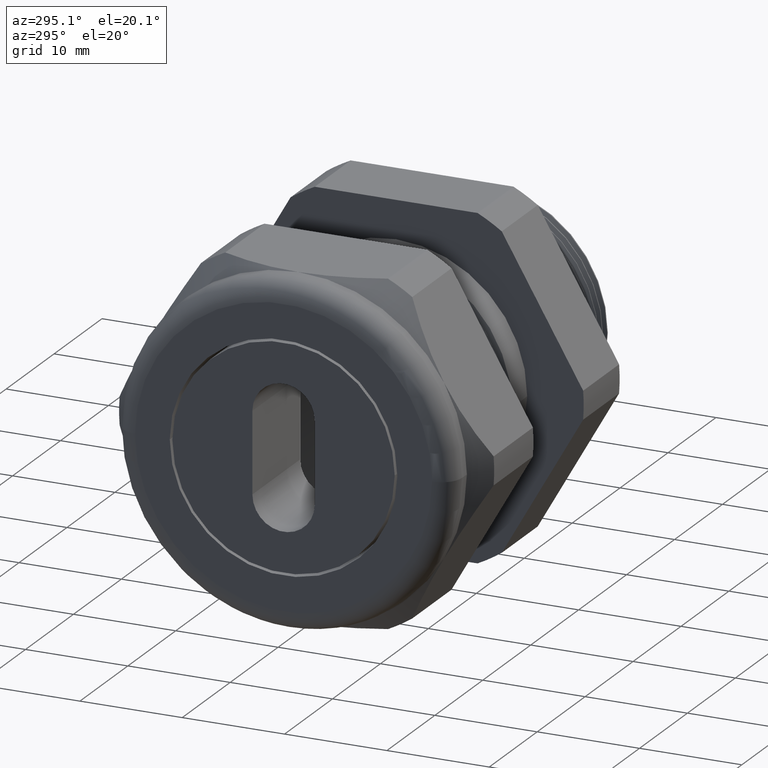
[diagram: clean part render]
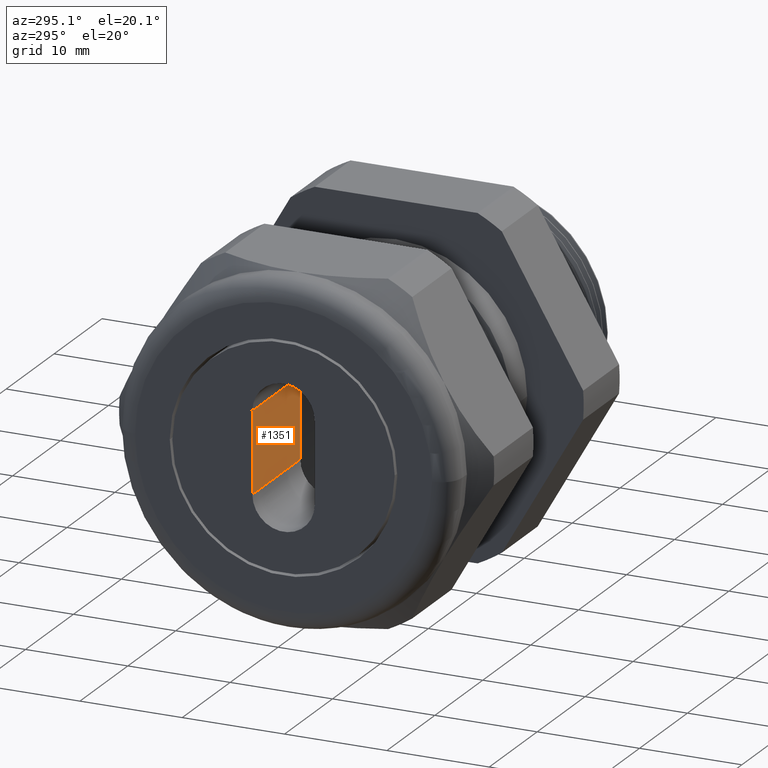
[diagram: same view with one face highlighted and labeled with its STEP entity id]
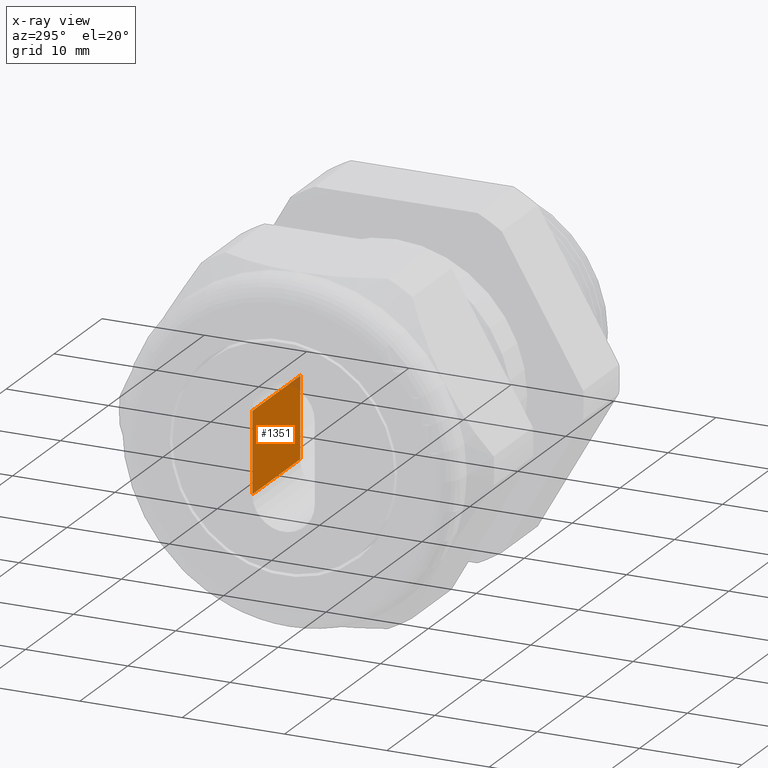
[diagram: x-ray of the same camera — body ghosted, the highlighted face saturated]
A machine part, auxiliary view. The second image highlights one B-rep face of the part: STEP entity #1351.
The next image is the same camera in x-ray: the body ghosted, the highlighted face saturated — about 2% of this face is hidden behind the body in this view.
In plain terms, the highlighted planar face has unit normal (0, 1, -0).
Its self-contained STEP definition (entity closure, byte-faithful):
#1350 = EDGE_CURVE ( 'NONE', #1365, #1437, #3829, .T. ) ;
#1351 = ADVANCED_FACE ( 'NONE', ( #3825 ), #3823, .F. ) ;
#1352 = ORIENTED_EDGE ( 'NONE', *, *, #1440, .T. ) ;
#1363 = EDGE_CURVE ( 'NONE', #1364, #1365, #3859, .T. ) ;
#1364 = VERTEX_POINT ( 'NONE', #3855 ) ;
#1365 = VERTEX_POINT ( 'NONE', #3854 ) ;
#1397 = EDGE_LOOP ( 'NONE', ( #1352, #1415, #1416, #1417 ) ) ;
#1415 = ORIENTED_EDGE ( 'NONE', *, *, #1350, .F. ) ;
#1416 = ORIENTED_EDGE ( 'NONE', *, *, #1363, .F. ) ;
#1417 = ORIENTED_EDGE ( 'NONE', *, *, #1418, .T. ) ;
#1418 = EDGE_CURVE ( 'NONE', #1364, #1441, #3976, .T. ) ;
#1437 = VERTEX_POINT ( 'NONE', #3998 ) ;
#1440 = EDGE_CURVE ( 'NONE', #1441, #1437, #3996, .T. ) ;
#1441 = VERTEX_POINT ( 'NONE', #3992 ) ;
#3820 = DIRECTION ( 'NONE',  ( 3.749030204222210100E-017, 1.000000000000000000, -0.0000000000000000000 ) ) ;
#3821 = CARTESIAN_POINT ( 'NONE',  ( -1.136299212598424800, 0.1200000000000000400, -0.1550000000000000500 ) ) ;
#3822 = AXIS2_PLACEMENT_3D ( 'NONE', #3821, #3820, #3882 ) ;
#3823 = PLANE ( 'NONE',  #3822 ) ;
#3825 = FACE_OUTER_BOUND ( 'NONE', #1397, .T. ) ;
#3826 = DIRECTION ( 'NONE',  ( -1.000000000000000000, 3.749030204222210100E-017, 0.0000000000000000000 ) ) ;
#3827 = VECTOR ( 'NONE', #3826, 39.37007874015748100 ) ;
#3828 = CARTESIAN_POINT ( 'NONE',  ( -1.136299212598424800, 0.1200000000000000400, -0.1550000000000000500 ) ) ;
#3829 = LINE ( 'NONE', #3828, #3827 ) ;
#3854 = CARTESIAN_POINT ( 'NONE',  ( -1.136299212598424800, 0.1200000000000000400, -0.1550000000000000500 ) ) ;
#3855 = CARTESIAN_POINT ( 'NONE',  ( -1.136299212598424800, 0.1200000000000000400, 0.1550000000000000500 ) ) ;
#3856 = DIRECTION ( 'NONE',  ( -0.0000000000000000000, -0.0000000000000000000, -1.000000000000000000 ) ) ;
#3857 = VECTOR ( 'NONE', #3856, 39.37007874015748100 ) ;
#3858 = CARTESIAN_POINT ( 'NONE',  ( -1.136299212598424800, 0.1200000000000000400, -0.1550000000000000500 ) ) ;
#3859 = LINE ( 'NONE', #3858, #3857 ) ;
#3882 = DIRECTION ( 'NONE',  ( -1.000000000000000000, 3.749030204222210100E-017, 0.0000000000000000000 ) ) ;
#3973 = DIRECTION ( 'NONE',  ( -1.000000000000000000, 3.749030204222210100E-017, 0.0000000000000000000 ) ) ;
#3974 = VECTOR ( 'NONE', #3973, 39.37007874015748100 ) ;
#3975 = CARTESIAN_POINT ( 'NONE',  ( -1.136299212598424800, 0.1200000000000000400, 0.1550000000000000500 ) ) ;
#3976 = LINE ( 'NONE', #3975, #3974 ) ;
#3992 = CARTESIAN_POINT ( 'NONE',  ( -1.529999999999999800, 0.1200000000000000500, 0.1550000000000000500 ) ) ;
#3993 = DIRECTION ( 'NONE',  ( -0.0000000000000000000, -0.0000000000000000000, -1.000000000000000000 ) ) ;
#3994 = VECTOR ( 'NONE', #3993, 39.37007874015748100 ) ;
#3995 = CARTESIAN_POINT ( 'NONE',  ( -1.529999999999999800, 0.1200000000000000500, -0.1550000000000000500 ) ) ;
#3996 = LINE ( 'NONE', #3995, #3994 ) ;
#3998 = CARTESIAN_POINT ( 'NONE',  ( -1.529999999999999800, 0.1200000000000000500, -0.1550000000000000500 ) ) ;